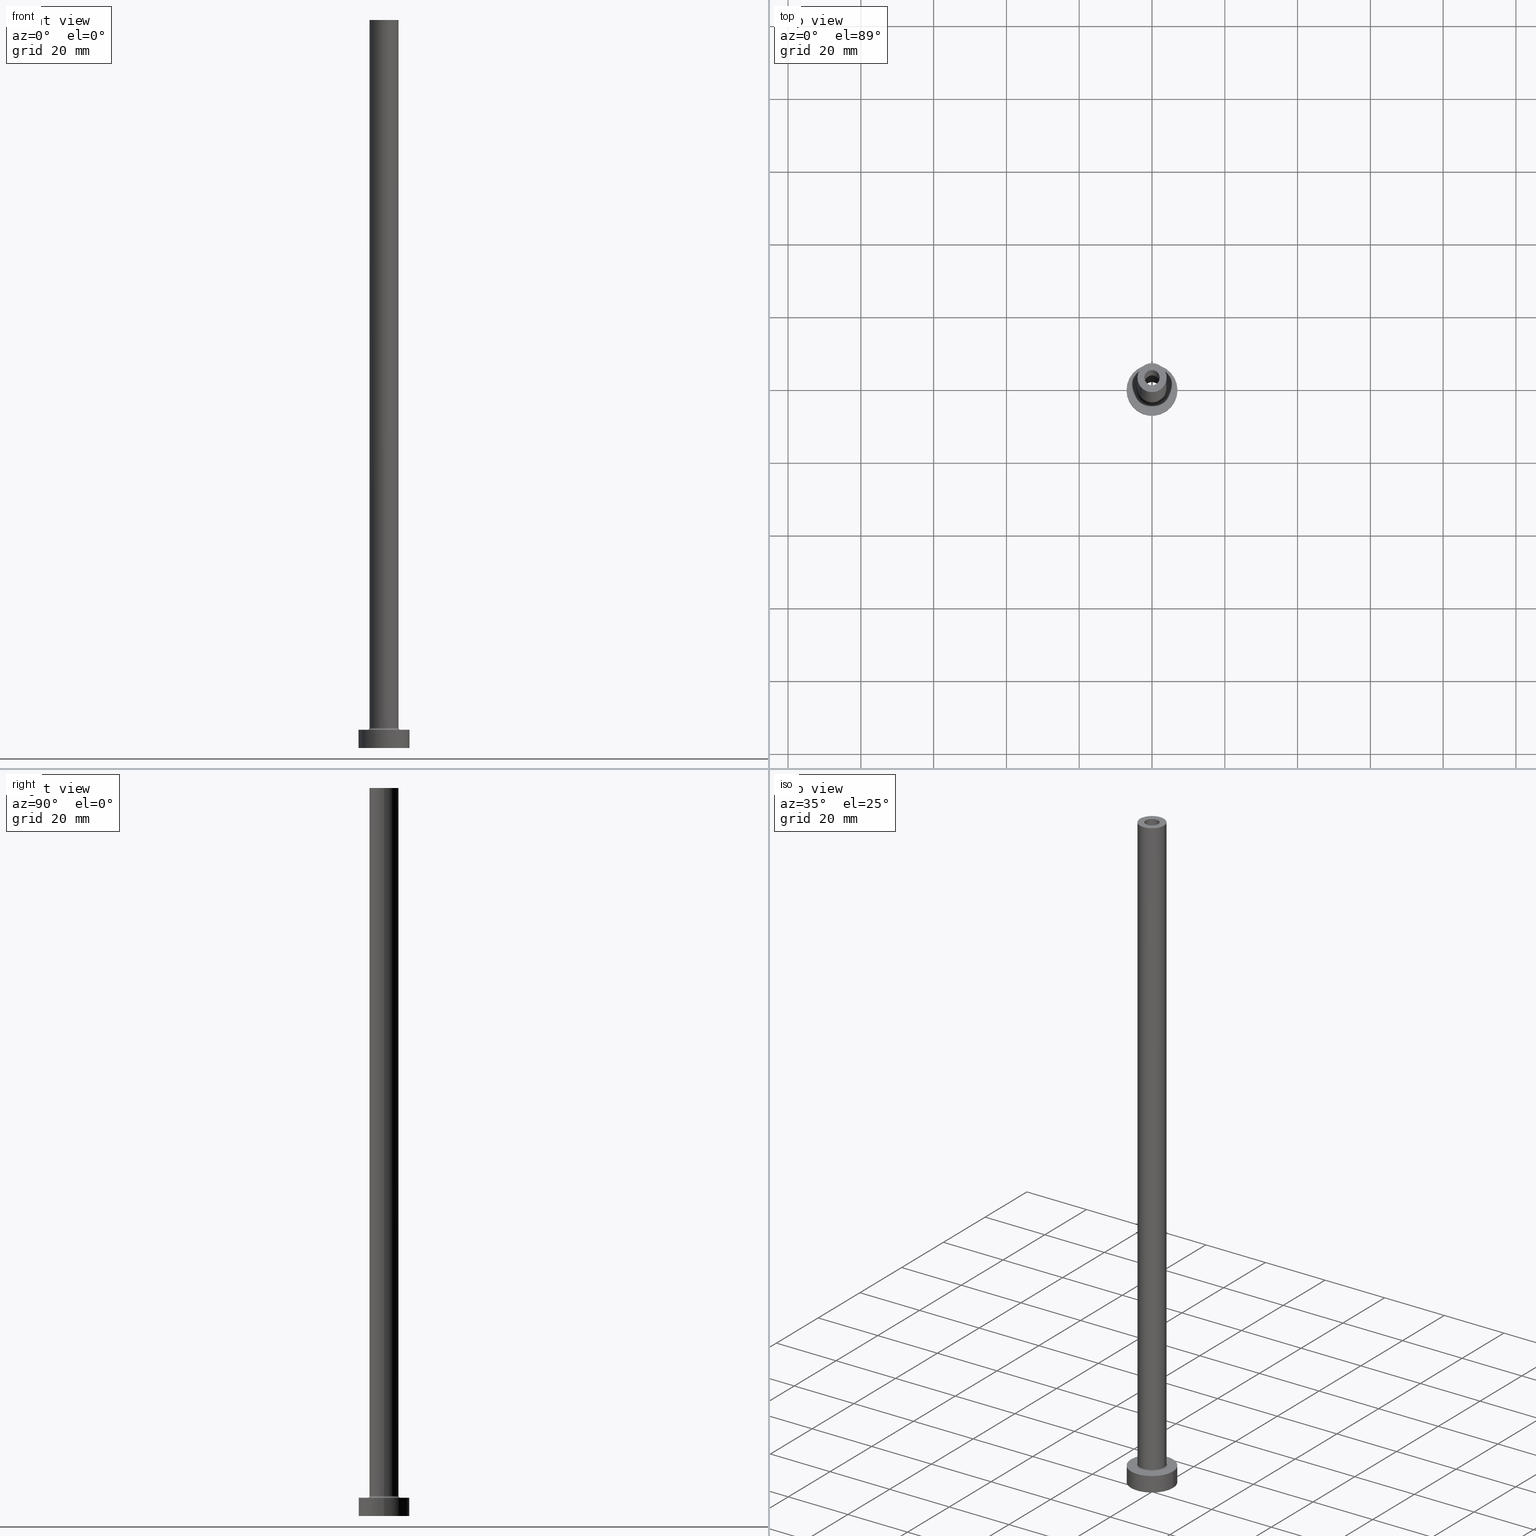
[diagram: canonical four-view strip — front | top / right | iso, engineering-drawing reading convention]
A machine part, canonical four-view strip (front | top / right | iso — engineering-drawing reading convention). The complete STEP part file that produces these views, byte-faithful:
ISO-10303-21;
HEADER;
FILE_DESCRIPTION (( 'STEP AP203' ),
    '1' );
FILE_NAME ('a5d0.STEP',
    '2023-02-13T11:06:39',
    ( '' ),
    ( '' ),
    'SwSTEP 2.0',
    'SolidWorks 2019',
    '' );
FILE_SCHEMA (( 'CONFIG_CONTROL_DESIGN' ));
ENDSEC;

DATA;
#1 = AXIS2_PLACEMENT_3D ( 'NONE', #55, #445, #270 ) ;
#2 = EDGE_CURVE ( 'NONE', #222, #29, #104, .T. ) ;
#3 = ORIENTED_EDGE ( 'NONE', *, *, #2, .F. ) ;
#4 = VERTEX_POINT ( 'NONE', #275 ) ;
#5 = DIRECTION ( 'NONE',  ( 1.000000000000000000, 0.000000000000000000, 0.000000000000000000 ) ) ;
#6 = EDGE_CURVE ( 'NONE', #12, #303, #56, .T. ) ;
#7 = AXIS2_PLACEMENT_3D ( 'NONE', #121, #200, #333 ) ;
#8 = CARTESIAN_POINT ( 'NONE',  ( 0.000000000000000000, 0.000000000000000000, 161.3639610306789507 ) ) ;
#9 =( GEOMETRIC_REPRESENTATION_CONTEXT ( 3 ) GLOBAL_UNCERTAINTY_ASSIGNED_CONTEXT ( ( #372 ) ) GLOBAL_UNIT_ASSIGNED_CONTEXT ( ( #459, #357, #248 ) ) REPRESENTATION_CONTEXT ( 'NONE', 'WORKASPACE' ) );
#10 = DIRECTION ( 'NONE',  ( 0.000000000000000000, 0.000000000000000000, 1.000000000000000000 ) ) ;
#11 = CARTESIAN_POINT ( 'NONE',  ( 0.000000000000000000, 0.000000000000000000, 5.500000000000005329 ) ) ;
#12 = VERTEX_POINT ( 'NONE', #339 ) ;
#13 = CARTESIAN_POINT ( 'NONE',  ( 0.000000000000000000, 0.000000000000000000, 200.0000000000000000 ) ) ;
#14 = TOROIDAL_SURFACE ( 'NONE', #133, 4.500000000000000888, 0.5000000000000000000 ) ;
#15 = DIRECTION ( 'NONE',  ( 1.000000000000000000, 0.000000000000000000, 0.000000000000000000 ) ) ;
#16 = DESIGN_CONTEXT ( 'detailed design', #348, 'design' ) ;
#17 = CARTESIAN_POINT ( 'NONE',  ( 2.250000000000000000, 2.755455298081544285E-16, 155.0000000000000284 ) ) ;
#18 = APPROVAL_PERSON_ORGANIZATION ( #141, #359, #426 ) ;
#19 = DIRECTION ( 'NONE',  ( 0.000000000000000000, 0.000000000000000000, 1.000000000000000000 ) ) ;
#20 = DIRECTION ( 'NONE',  ( 1.000000000000000000, 0.000000000000000000, 0.000000000000000000 ) ) ;
#21 = CC_DESIGN_PERSON_AND_ORGANIZATION_ASSIGNMENT ( #69, #96, ( #457 ) ) ;
#22 = FACE_OUTER_BOUND ( 'NONE', #188, .T. ) ;
#23 = LINE ( 'NONE', #414, #447 ) ;
#24 = DIRECTION ( 'NONE',  ( 0.000000000000000000, 0.000000000000000000, 1.000000000000000000 ) ) ;
#25 = AXIS2_PLACEMENT_3D ( 'NONE', #155, #366, #225 ) ;
#26 = AXIS2_PLACEMENT_3D ( 'NONE', #109, #132, #138 ) ;
#27 = CARTESIAN_POINT ( 'NONE',  ( 0.000000000000000000, 0.000000000000000000, 5.000000000000000000 ) ) ;
#28 = DIRECTION ( 'NONE',  ( -0.000000000000000000, -0.000000000000000000, -1.000000000000000000 ) ) ;
#29 = VERTEX_POINT ( 'NONE', #451 ) ;
#30 = PERSON_AND_ORGANIZATION ( #148, #241 ) ;
#31 = VECTOR ( 'NONE', #28, 1000.000000000000000 ) ;
#32 = ORIENTED_EDGE ( 'NONE', *, *, #115, .T. ) ;
#33 = COORDINATED_UNIVERSAL_TIME_OFFSET ( 1, 0, .AHEAD. ) ;
#34 = APPROVAL_STATUS ( 'not_yet_approved' ) ;
#35 = ADVANCED_FACE ( 'NONE', ( #277, #22 ), #413, .T. ) ;
#36 = DIRECTION ( 'NONE',  ( 0.000000000000000000, -1.000000000000000000, 0.000000000000000000 ) ) ;
#37 = DIRECTION ( 'NONE',  ( 0.000000000000000000, 0.000000000000000000, 1.000000000000000000 ) ) ;
#38 = APPROVAL_STATUS ( 'not_yet_approved' ) ;
#39 = EDGE_LOOP ( 'NONE', ( #147, #190, #336, #123 ) ) ;
#40 = ADVANCED_FACE ( 'NONE', ( #309 ), #14, .F. ) ;
#41 = ORIENTED_EDGE ( 'NONE', *, *, #218, .F. ) ;
#42 = ORIENTED_EDGE ( 'NONE', *, *, #360, .T. ) ;
#43 = FACE_OUTER_BOUND ( 'NONE', #53, .T. ) ;
#44 = CC_DESIGN_PERSON_AND_ORGANIZATION_ASSIGNMENT ( #346, #212, ( #259 ) ) ;
#45 = CARTESIAN_POINT ( 'NONE',  ( 0.000000000000000000, 0.000000000000000000, 200.0000000000000000 ) ) ;
#46 = LINE ( 'NONE', #261, #203 ) ;
#47 = DIRECTION ( 'NONE',  ( 0.000000000000000000, 0.000000000000000000, -1.000000000000000000 ) ) ;
#48 = CARTESIAN_POINT ( 'NONE',  ( 0.000000000000000000, 0.000000000000000000, 0.000000000000000000 ) ) ;
#49 = CIRCLE ( 'NONE', #312, 4.000000000000000000 ) ;
#50 = ORIENTED_EDGE ( 'NONE', *, *, #74, .T. ) ;
#51 = CYLINDRICAL_SURFACE ( 'NONE', #455, 4.000000000000000000 ) ;
#52 = CYLINDRICAL_SURFACE ( 'NONE', #91, 7.000000000000000000 ) ;
#53 = EDGE_LOOP ( 'NONE', ( #446, #68, #398, #353 ) ) ;
#54 = CIRCLE ( 'NONE', #421, 2.100000000000000089 ) ;
#55 = CARTESIAN_POINT ( 'NONE',  ( 0.000000000000000000, 0.000000000000000000, 5.000000000000000000 ) ) ;
#56 = LINE ( 'NONE', #379, #31 ) ;
#57 = CARTESIAN_POINT ( 'NONE',  ( 0.000000000000000000, 0.000000000000000000, 200.0000000000000000 ) ) ;
#58 = APPROVAL ( #34, 'NEUR�EN�' ) ;
#59 = ORIENTED_EDGE ( 'NONE', *, *, #433, .T. ) ;
#60 = EDGE_LOOP ( 'NONE', ( #173, #264 ) ) ;
#61 = MECHANICAL_CONTEXT ( 'NONE', #280, 'mechanical' ) ;
#62 = CARTESIAN_POINT ( 'NONE',  ( -4.000000000000000000, 0.000000000000000000, 200.0000000000000000 ) ) ;
#63 = ADVANCED_FACE ( 'NONE', ( #131, #315 ), #246, .F. ) ;
#64 = ORIENTED_EDGE ( 'NONE', *, *, #438, .F. ) ;
#65 = APPROVAL_STATUS ( 'not_yet_approved' ) ;
#66 = FACE_OUTER_BOUND ( 'NONE', #291, .T. ) ;
#67 = CC_DESIGN_DATE_AND_TIME_ASSIGNMENT ( #387, #135, ( #219 ) ) ;
#68 = ORIENTED_EDGE ( 'NONE', *, *, #2, .T. ) ;
#69 = PERSON_AND_ORGANIZATION ( #148, #241 ) ;
#70 = CIRCLE ( 'NONE', #162, 2.250000000000000000 ) ;
#71 = APPROVAL_PERSON_ORGANIZATION ( #239, #318, #461 ) ;
#72 = DIRECTION ( 'NONE',  ( -0.000000000000000000, -0.000000000000000000, -1.000000000000000000 ) ) ;
#73 = CALENDAR_DATE ( 2023, 13, 2 ) ;
#74 = EDGE_CURVE ( 'NONE', #324, #358, #453, .T. ) ;
#75 = ORIENTED_EDGE ( 'NONE', *, *, #184, .T. ) ;
#76 = DIRECTION ( 'NONE',  ( 0.000000000000000000, 0.000000000000000000, 1.000000000000000000 ) ) ;
#77 = AXIS2_PLACEMENT_3D ( 'NONE', #136, #287, #215 ) ;
#78 = CC_DESIGN_SECURITY_CLASSIFICATION ( #457, ( #124 ) ) ;
#79 = CARTESIAN_POINT ( 'NONE',  ( 0.000000000000000000, 0.000000000000000000, 0.000000000000000000 ) ) ;
#80 = VERTEX_POINT ( 'NONE', #217 ) ;
#81 = AXIS2_PLACEMENT_3D ( 'NONE', #204, #376, #134 ) ;
#82 = ORIENTED_EDGE ( 'NONE', *, *, #243, .T. ) ;
#83 = DIRECTION ( 'NONE',  ( 0.000000000000000000, 0.000000000000000000, 1.000000000000000000 ) ) ;
#84 = APPROVAL_PERSON_ORGANIZATION ( #351, #58, #182 ) ;
#85 = EDGE_CURVE ( 'NONE', #341, #305, #187, .T. ) ;
#86 = VERTEX_POINT ( 'NONE', #185 ) ;
#87 = FACE_OUTER_BOUND ( 'NONE', #130, .T. ) ;
#88 = AXIS2_PLACEMENT_3D ( 'NONE', #285, #111, #145 ) ;
#89 = ORIENTED_EDGE ( 'NONE', *, *, #250, .F. ) ;
#90 = EDGE_CURVE ( 'NONE', #350, #86, #142, .T. ) ;
#91 = AXIS2_PLACEMENT_3D ( 'NONE', #229, #207, #340 ) ;
#92 = DIRECTION ( 'NONE',  ( 1.000000000000000000, 0.000000000000000000, 0.000000000000000000 ) ) ;
#93 = AXIS2_PLACEMENT_3D ( 'NONE', #45, #83, #365 ) ;
#94 = PRODUCT_DEFINITION_SHAPE ( 'NONE', 'NONE',  #219 ) ;
#95 = DIRECTION ( 'NONE',  ( 0.000000000000000000, 0.000000000000000000, -1.000000000000000000 ) ) ;
#96 = PERSON_AND_ORGANIZATION_ROLE ( 'classification_officer' ) ;
#97 = LINE ( 'NONE', #418, #271 ) ;
#98 = DIRECTION ( 'NONE',  ( 0.000000000000000000, 0.000000000000000000, 1.000000000000000000 ) ) ;
#99 = DATE_AND_TIME ( #179, #101 ) ;
#100 = AXIS2_PLACEMENT_3D ( 'NONE', #48, #10, #5 ) ;
#101 = LOCAL_TIME ( 12, 6, 39.00000000000000000, #186 ) ;
#102 = ORIENTED_EDGE ( 'NONE', *, *, #119, .T. ) ;
#103 = COORDINATED_UNIVERSAL_TIME_OFFSET ( 1, 0, .AHEAD. ) ;
#104 = CIRCLE ( 'NONE', #81, 0.5000000000000004441 ) ;
#105 = ORIENTED_EDGE ( 'NONE', *, *, #174, .F. ) ;
#106 = FACE_BOUND ( 'NONE', #128, .T. ) ;
#107 = CARTESIAN_POINT ( 'NONE',  ( 0.000000000000000000, 0.000000000000000000, 155.0000000000000284 ) ) ;
#108 = EDGE_CURVE ( 'NONE', #4, #220, #175, .T. ) ;
#109 = CARTESIAN_POINT ( 'NONE',  ( 0.000000000000000000, 0.000000000000000000, 0.000000000000000000 ) ) ;
#110 = AXIS2_PLACEMENT_3D ( 'NONE', #427, #253, #401 ) ;
#111 = DIRECTION ( 'NONE',  ( 0.000000000000000000, 0.000000000000000000, 1.000000000000000000 ) ) ;
#112 = CYLINDRICAL_SURFACE ( 'NONE', #183, 2.250000000000000000 ) ;
#113 = ORIENTED_EDGE ( 'NONE', *, *, #189, .T. ) ;
#114 = DIRECTION ( 'NONE',  ( 0.000000000000000000, 0.000000000000000000, 1.000000000000000000 ) ) ;
#115 = EDGE_CURVE ( 'NONE', #220, #222, #424, .T. ) ;
#116 = CC_DESIGN_DATE_AND_TIME_ASSIGNMENT ( #99, #354, ( #457 ) ) ;
#117 = DIRECTION ( 'NONE',  ( -1.000000000000000000, 0.000000000000000000, 0.000000000000000000 ) ) ;
#118 = ORIENTED_EDGE ( 'NONE', *, *, #224, .F. ) ;
#119 = EDGE_CURVE ( 'NONE', #222, #396, #49, .T. ) ;
#120 = DIRECTION ( 'NONE',  ( -1.000000000000000000, 0.000000000000000000, 0.000000000000000000 ) ) ;
#121 = CARTESIAN_POINT ( 'NONE',  ( 0.000000000000000000, 0.000000000000000000, 200.0000000000000000 ) ) ;
#122 = CIRCLE ( 'NONE', #110, 4.500000000000000888 ) ;
#123 = ORIENTED_EDGE ( 'NONE', *, *, #115, .F. ) ;
#124 = PRODUCT_DEFINITION_FORMATION_WITH_SPECIFIED_SOURCE ( 'LIBOVOLN�', '', #259, .NOT_KNOWN. ) ;
#125 = DIRECTION ( 'NONE',  ( 0.000000000000000000, 0.000000000000000000, -1.000000000000000000 ) ) ;
#126 = EDGE_CURVE ( 'NONE', #80, #86, #308, .T. ) ;
#127 = DIRECTION ( 'NONE',  ( 1.000000000000000000, 0.000000000000000000, 0.000000000000000000 ) ) ;
#128 = EDGE_LOOP ( 'NONE', ( #326, #82 ) ) ;
#129 = CARTESIAN_POINT ( 'NONE',  ( 7.000000000000000000, 8.572527594031473190E-16, 0.000000000000000000 ) ) ;
#130 = EDGE_LOOP ( 'NONE', ( #181, #50, #234, #439 ) ) ;
#131 = FACE_BOUND ( 'NONE', #257, .T. ) ;
#132 = DIRECTION ( 'NONE',  ( 0.000000000000000000, 0.000000000000000000, 1.000000000000000000 ) ) ;
#133 = AXIS2_PLACEMENT_3D ( 'NONE', #415, #98, #177 ) ;
#134 = DIRECTION ( 'NONE',  ( -1.000000000000000000, 1.224646799147351482E-16, 0.000000000000000000 ) ) ;
#135 = DATE_TIME_ROLE ( 'creation_date' ) ;
#136 = CARTESIAN_POINT ( 'NONE',  ( 0.000000000000000000, 0.000000000000000000, 200.0000000000000000 ) ) ;
#137 = DIRECTION ( 'NONE',  ( 0.000000000000000000, 0.000000000000000000, -1.000000000000000000 ) ) ;
#138 = DIRECTION ( 'NONE',  ( 1.000000000000000000, 0.000000000000000000, 0.000000000000000000 ) ) ;
#139 = AXIS2_PLACEMENT_3D ( 'NONE', #373, #267, #120 ) ;
#140 = ORIENTED_EDGE ( 'NONE', *, *, #90, .T. ) ;
#141 = PERSON_AND_ORGANIZATION ( #148, #241 ) ;
#142 = CIRCLE ( 'NONE', #266, 2.100000000000000089 ) ;
#143 = DIRECTION ( 'NONE',  ( 0.000000000000000000, 0.000000000000000000, 1.000000000000000000 ) ) ;
#144 = CARTESIAN_POINT ( 'NONE',  ( 0.000000000000000000, 0.000000000000000000, 155.0000000000000284 ) ) ;
#145 = DIRECTION ( 'NONE',  ( 1.000000000000000000, 0.000000000000000000, 0.000000000000000000 ) ) ;
#146 = CC_DESIGN_PERSON_AND_ORGANIZATION_ASSIGNMENT ( #30, #342, ( #124 ) ) ;
#147 = ORIENTED_EDGE ( 'NONE', *, *, #108, .F. ) ;
#148 = PERSON ( 'NEUR�EN�', 'NEUR�EN�', 'NEUR�EN�', ('NEUR�EN�'), ('NEUR�EN�'), ('NEUR�EN�') ) ;
#149 = CIRCLE ( 'NONE', #254, 7.000000000000000000 ) ;
#150 = ORIENTED_EDGE ( 'NONE', *, *, #347, .F. ) ;
#151 = DIRECTION ( 'NONE',  ( 1.000000000000000000, 0.000000000000000000, 0.000000000000000000 ) ) ;
#152 = AXIS2_PLACEMENT_3D ( 'NONE', #263, #19, #127 ) ;
#153 = FACE_BOUND ( 'NONE', #260, .T. ) ;
#154 = EDGE_CURVE ( 'NONE', #303, #358, #292, .T. ) ;
#155 = CARTESIAN_POINT ( 'NONE',  ( 0.000000000000000000, 0.000000000000000000, 161.3639610306789507 ) ) ;
#156 = CIRCLE ( 'NONE', #441, 7.000000000000000000 ) ;
#157 = FACE_OUTER_BOUND ( 'NONE', #288, .T. ) ;
#158 = DIRECTION ( 'NONE',  ( 0.000000000000000000, 0.000000000000000000, 1.000000000000000000 ) ) ;
#159 = CC_DESIGN_PERSON_AND_ORGANIZATION_ASSIGNMENT ( #425, #416, ( #124 ) ) ;
#160 = ORIENTED_EDGE ( 'NONE', *, *, #224, .T. ) ;
#161 = CARTESIAN_POINT ( 'NONE',  ( 4.500000000000000888, 0.000000000000000000, 5.000000000000002665 ) ) ;
#162 = AXIS2_PLACEMENT_3D ( 'NONE', #144, #284, #176 ) ;
#163 = EDGE_LOOP ( 'NONE', ( #3, #150, #361, #458 ) ) ;
#164 = AXIS2_PLACEMENT_3D ( 'NONE', #440, #258, #404 ) ;
#165 = VERTEX_POINT ( 'NONE', #377 ) ;
#166 = CARTESIAN_POINT ( 'NONE',  ( 2.100000000000000089, 2.571758278209441464E-16, 155.0000000000000284 ) ) ;
#167 = ADVANCED_FACE ( 'NONE', ( #231 ), #52, .T. ) ;
#168 = DIRECTION ( 'NONE',  ( 1.000000000000000000, 0.000000000000000000, -0.000000000000000000 ) ) ;
#169 = MANIFOLD_SOLID_BREP ( 'Odebrat vysunut�m4', #191 ) ;
#170 = AXIS2_PLACEMENT_3D ( 'NONE', #79, #221, #15 ) ;
#171 = DATE_AND_TIME ( #393, #383 ) ;
#172 = CC_DESIGN_APPROVAL ( #359, ( #219 ) ) ;
#173 = ORIENTED_EDGE ( 'NONE', *, *, #433, .F. ) ;
#174 = EDGE_CURVE ( 'NONE', #419, #233, #23, .T. ) ;
#175 = CIRCLE ( 'NONE', #88, 4.000000000000000000 ) ;
#176 = DIRECTION ( 'NONE',  ( 1.000000000000000000, 0.000000000000000000, 0.000000000000000000 ) ) ;
#177 = DIRECTION ( 'NONE',  ( 1.000000000000000000, 0.000000000000000000, 0.000000000000000000 ) ) ;
#178 = ORIENTED_EDGE ( 'NONE', *, *, #6, .T. ) ;
#179 = CALENDAR_DATE ( 2023, 13, 2 ) ;
#180 = DIRECTION ( 'NONE',  ( 1.000000000000000000, 0.000000000000000000, -0.000000000000000000 ) ) ;
#181 = ORIENTED_EDGE ( 'NONE', *, *, #184, .F. ) ;
#182 = APPROVAL_ROLE ( '' ) ;
#183 = AXIS2_PLACEMENT_3D ( 'NONE', #8, #226, #297 ) ;
#184 = EDGE_CURVE ( 'NONE', #324, #12, #156, .T. ) ;
#185 = CARTESIAN_POINT ( 'NONE',  ( -2.100000000000000089, 0.000000000000000000, 155.0000000000000284 ) ) ;
#186 = COORDINATED_UNIVERSAL_TIME_OFFSET ( 1, 0, .AHEAD. ) ;
#187 = LINE ( 'NONE', #321, #338 ) ;
#188 = EDGE_LOOP ( 'NONE', ( #434, #411 ) ) ;
#189 = EDGE_CURVE ( 'NONE', #165, #80, #210, .T. ) ;
#190 = ORIENTED_EDGE ( 'NONE', *, *, #316, .T. ) ;
#191 = CLOSED_SHELL ( 'NONE', ( #304, #274, #410, #325, #320, #167, #213, #405, #232, #35, #40, #423, #63, #448 ) ) ;
#192 = CARTESIAN_POINT ( 'NONE',  ( 0.000000000000000000, 0.000000000000000000, 155.0000000000000284 ) ) ;
#193 = CYLINDRICAL_SURFACE ( 'NONE', #139, 7.000000000000000000 ) ;
#194 = EDGE_LOOP ( 'NONE', ( #42, #75 ) ) ;
#195 = PLANE ( 'NONE',  #368 ) ;
#196 = EDGE_LOOP ( 'NONE', ( #238, #272, #403, #160 ) ) ;
#197 = FACE_OUTER_BOUND ( 'NONE', #460, .T. ) ;
#198 = CYLINDRICAL_SURFACE ( 'NONE', #279, 2.100000000000000089 ) ;
#199 = VERTEX_POINT ( 'NONE', #161 ) ;
#200 = DIRECTION ( 'NONE',  ( 0.000000000000000000, 0.000000000000000000, 1.000000000000000000 ) ) ;
#201 = ORIENTED_EDGE ( 'NONE', *, *, #360, .F. ) ;
#202 = CARTESIAN_POINT ( 'NONE',  ( 0.000000000000000000, 0.000000000000000000, 200.0000000000000000 ) ) ;
#203 = VECTOR ( 'NONE', #301, 1000.000000000000000 ) ;
#204 = CARTESIAN_POINT ( 'NONE',  ( -4.500000000000000888, 5.510910596163089556E-16, 5.500000000000005329 ) ) ;
#205 = TOROIDAL_SURFACE ( 'NONE', #228, 4.500000000000000888, 0.5000000000000000000 ) ;
#206 = DIRECTION ( 'NONE',  ( 1.000000000000000000, 0.000000000000000000, 0.000000000000000000 ) ) ;
#207 = DIRECTION ( 'NONE',  ( -0.000000000000000000, -0.000000000000000000, -1.000000000000000000 ) ) ;
#208 = EDGE_CURVE ( 'NONE', #165, #350, #97, .T. ) ;
#209 = ORIENTED_EDGE ( 'NONE', *, *, #154, .F. ) ;
#210 = CIRCLE ( 'NONE', #7, 2.100000000000000089 ) ;
#211 = PERSON_AND_ORGANIZATION ( #148, #241 ) ;
#212 = PERSON_AND_ORGANIZATION_ROLE ( 'design_owner' ) ;
#213 = ADVANCED_FACE ( 'NONE', ( #106, #382 ), #363, .T. ) ;
#214 = APPLICATION_PROTOCOL_DEFINITION ( 'international standard', 'config_control_design', 1994, #348 ) ;
#215 = DIRECTION ( 'NONE',  ( -1.000000000000000000, 0.000000000000000000, 0.000000000000000000 ) ) ;
#216 = APPROVAL_DATE_TIME ( #282, #58 ) ;
#217 = CARTESIAN_POINT ( 'NONE',  ( -2.100000000000000089, 0.000000000000000000, 200.0000000000000000 ) ) ;
#218 = EDGE_CURVE ( 'NONE', #341, #419, #70, .T. ) ;
#219 = PRODUCT_DEFINITION ( 'NEZN�M�', '', #124, #16 ) ;
#220 = VERTEX_POINT ( 'NONE', #62 ) ;
#221 = DIRECTION ( 'NONE',  ( -0.000000000000000000, -0.000000000000000000, -1.000000000000000000 ) ) ;
#222 = VERTEX_POINT ( 'NONE', #314 ) ;
#223 = CARTESIAN_POINT ( 'NONE',  ( -2.250000000000000000, 0.000000000000000000, 155.0000000000000284 ) ) ;
#224 = EDGE_CURVE ( 'NONE', #233, #305, #329, .T. ) ;
#225 = DIRECTION ( 'NONE',  ( -1.000000000000000000, 0.000000000000000000, 0.000000000000000000 ) ) ;
#226 = DIRECTION ( 'NONE',  ( 0.000000000000000000, 0.000000000000000000, -1.000000000000000000 ) ) ;
#227 = CIRCLE ( 'NONE', #289, 0.5000000000000004441 ) ;
#228 = AXIS2_PLACEMENT_3D ( 'NONE', #293, #435, #151 ) ;
#229 = CARTESIAN_POINT ( 'NONE',  ( 0.000000000000000000, 0.000000000000000000, 5.000000000000000000 ) ) ;
#230 = ORIENTED_EDGE ( 'NONE', *, *, #90, .F. ) ;
#231 = FACE_OUTER_BOUND ( 'NONE', #374, .T. ) ;
#232 = ADVANCED_FACE ( 'NONE', ( #66 ), #242, .T. ) ;
#233 = VERTEX_POINT ( 'NONE', #456 ) ;
#234 = ORIENTED_EDGE ( 'NONE', *, *, #283, .T. ) ;
#235 = DIRECTION ( 'NONE',  ( 0.000000000000000000, 0.000000000000000000, -1.000000000000000000 ) ) ;
#236 = EDGE_CURVE ( 'NONE', #396, #199, #227, .T. ) ;
#237 = CARTESIAN_POINT ( 'NONE',  ( -2.100000000000000089, 0.000000000000000000, 200.0000000000000000 ) ) ;
#238 = ORIENTED_EDGE ( 'NONE', *, *, #85, .F. ) ;
#239 = PERSON_AND_ORGANIZATION ( #148, #241 ) ;
#240 = DIRECTION ( 'NONE',  ( 0.000000000000000000, 0.000000000000000000, -1.000000000000000000 ) ) ;
#241 = ORGANIZATION ( 'NEUR�EN�', 'NEUR�EN�', '' ) ;
#242 = CYLINDRICAL_SURFACE ( 'NONE', #77, 4.000000000000000000 ) ;
#243 = EDGE_CURVE ( 'NONE', #29, #199, #122, .T. ) ;
#244 = APPROVAL_DATE_TIME ( #276, #359 ) ;
#245 = DIRECTION ( 'NONE',  ( 0.000000000000000000, 0.000000000000000000, -1.000000000000000000 ) ) ;
#246 = PLANE ( 'NONE',  #450 ) ;
#247 = COORDINATED_UNIVERSAL_TIME_OFFSET ( 1, 0, .AHEAD. ) ;
#248 =( NAMED_UNIT ( * ) SI_UNIT ( $, .STERADIAN. ) SOLID_ANGLE_UNIT ( ) );
#249 = CARTESIAN_POINT ( 'NONE',  ( 0.000000000000000000, 0.000000000000000000, 0.000000000000000000 ) ) ;
#250 = EDGE_CURVE ( 'NONE', #305, #233, #367, .T. ) ;
#251 = DIRECTION ( 'NONE',  ( 1.000000000000000000, 0.000000000000000000, 0.000000000000000000 ) ) ;
#252 = EDGE_LOOP ( 'NONE', ( #390, #41 ) ) ;
#253 = DIRECTION ( 'NONE',  ( -0.000000000000000000, -0.000000000000000000, -1.000000000000000000 ) ) ;
#254 = AXIS2_PLACEMENT_3D ( 'NONE', #307, #337, #92 ) ;
#255 = DIRECTION ( 'NONE',  ( -0.000000000000000000, -0.000000000000000000, -1.000000000000000000 ) ) ;
#256 = VECTOR ( 'NONE', #323, 1000.000000000000000 ) ;
#257 = EDGE_LOOP ( 'NONE', ( #300, #140 ) ) ;
#258 = DIRECTION ( 'NONE',  ( 0.000000000000000000, 0.000000000000000000, 1.000000000000000000 ) ) ;
#259 = PRODUCT ( 'a5d0', 'a5d0', '', ( #61 ) ) ;
#260 = EDGE_LOOP ( 'NONE', ( #118, #89 ) ) ;
#261 = CARTESIAN_POINT ( 'NONE',  ( 4.000000000000000000, 4.898587196589412829E-16, 200.0000000000000000 ) ) ;
#262 = CIRCLE ( 'NONE', #164, 2.100000000000000089 ) ;
#263 = CARTESIAN_POINT ( 'NONE',  ( 0.000000000000000000, 0.000000000000000000, 0.000000000000000000 ) ) ;
#264 = ORIENTED_EDGE ( 'NONE', *, *, #189, .F. ) ;
#265 = ORIENTED_EDGE ( 'NONE', *, *, #85, .T. ) ;
#266 = AXIS2_PLACEMENT_3D ( 'NONE', #107, #37, #392 ) ;
#267 = DIRECTION ( 'NONE',  ( -0.000000000000000000, -0.000000000000000000, -1.000000000000000000 ) ) ;
#268 = APPLICATION_PROTOCOL_DEFINITION ( 'international standard', 'config_control_design', 1994, #280 ) ;
#269 = PRODUCT_RELATED_PRODUCT_CATEGORY ( 'detail', '', ( #259 ) ) ;
#270 = DIRECTION ( 'NONE',  ( 1.000000000000000000, 0.000000000000000000, 0.000000000000000000 ) ) ;
#271 = VECTOR ( 'NONE', #240, 1000.000000000000000 ) ;
#272 = ORIENTED_EDGE ( 'NONE', *, *, #218, .T. ) ;
#273 = LOCAL_TIME ( 12, 6, 39.00000000000000000, #103 ) ;
#274 = ADVANCED_FACE ( 'NONE', ( #442 ), #328, .F. ) ;
#275 = CARTESIAN_POINT ( 'NONE',  ( 4.000000000000000000, 4.898587196589412829E-16, 200.0000000000000000 ) ) ;
#276 = DATE_AND_TIME ( #286, #290 ) ;
#277 = FACE_BOUND ( 'NONE', #60, .T. ) ;
#278 = ORIENTED_EDGE ( 'NONE', *, *, #389, .F. ) ;
#279 = AXIS2_PLACEMENT_3D ( 'NONE', #298, #125, #117 ) ;
#280 = APPLICATION_CONTEXT ( 'configuration controlled 3d designs of mechanical parts and assemblies' ) ;
#281 = LOCAL_TIME ( 12, 6, 39.00000000000000000, #313 ) ;
#282 = DATE_AND_TIME ( #73, #281 ) ;
#283 = EDGE_CURVE ( 'NONE', #358, #303, #428, .T. ) ;
#284 = DIRECTION ( 'NONE',  ( 0.000000000000000000, 0.000000000000000000, 1.000000000000000000 ) ) ;
#285 = CARTESIAN_POINT ( 'NONE',  ( 0.000000000000000000, 0.000000000000000000, 200.0000000000000000 ) ) ;
#286 = CALENDAR_DATE ( 2023, 13, 2 ) ;
#287 = DIRECTION ( 'NONE',  ( -0.000000000000000000, -0.000000000000000000, -1.000000000000000000 ) ) ;
#288 = EDGE_LOOP ( 'NONE', ( #59, #431, #278, #378 ) ) ;
#289 = AXIS2_PLACEMENT_3D ( 'NONE', #352, #36, #245 ) ;
#290 = LOCAL_TIME ( 12, 6, 39.00000000000000000, #33 ) ;
#291 = EDGE_LOOP ( 'NONE', ( #364, #64, #32, #102 ) ) ;
#292 = CIRCLE ( 'NONE', #152, 7.000000000000000000 ) ;
#293 = CARTESIAN_POINT ( 'NONE',  ( 0.000000000000000000, 0.000000000000000000, 5.500000000000005329 ) ) ;
#294 = EDGE_LOOP ( 'NONE', ( #209, #420 ) ) ;
#295 = CARTESIAN_POINT ( 'NONE',  ( 7.000000000000000000, 8.572527594031473190E-16, 5.000000000000000000 ) ) ;
#296 = ORIENTED_EDGE ( 'NONE', *, *, #417, .T. ) ;
#297 = DIRECTION ( 'NONE',  ( -1.000000000000000000, 0.000000000000000000, 0.000000000000000000 ) ) ;
#298 = CARTESIAN_POINT ( 'NONE',  ( 0.000000000000000000, 0.000000000000000000, 200.0000000000000000 ) ) ;
#299 = AXIS2_PLACEMENT_3D ( 'NONE', #57, #24, #168 ) ;
#300 = ORIENTED_EDGE ( 'NONE', *, *, #389, .T. ) ;
#301 = DIRECTION ( 'NONE',  ( -0.000000000000000000, -0.000000000000000000, -1.000000000000000000 ) ) ;
#302 = DIRECTION ( 'NONE',  ( 1.000000000000000000, 0.000000000000000000, 0.000000000000000000 ) ) ;
#303 = VERTEX_POINT ( 'NONE', #444 ) ;
#304 = ADVANCED_FACE ( 'NONE', ( #157 ), #198, .F. ) ;
#305 = VERTEX_POINT ( 'NONE', #408 ) ;
#306 = CARTESIAN_POINT ( 'NONE',  ( 0.000000000000000000, 0.000000000000000000, 5.500000000000005329 ) ) ;
#307 = CARTESIAN_POINT ( 'NONE',  ( 0.000000000000000000, 0.000000000000000000, 5.000000000000000000 ) ) ;
#308 = LINE ( 'NONE', #237, #432 ) ;
#309 = FACE_OUTER_BOUND ( 'NONE', #163, .T. ) ;
#310 = AXIS2_PLACEMENT_3D ( 'NONE', #192, #158, #402 ) ;
#311 = CARTESIAN_POINT ( 'NONE',  ( 0.000000000000000000, 0.000000000000000000, 0.000000000000000000 ) ) ;
#312 = AXIS2_PLACEMENT_3D ( 'NONE', #11, #370, #251 ) ;
#313 = COORDINATED_UNIVERSAL_TIME_OFFSET ( 1, 0, .AHEAD. ) ;
#314 = CARTESIAN_POINT ( 'NONE',  ( -4.000000000000000000, 0.000000000000000000, 5.500000000000005329 ) ) ;
#315 = FACE_OUTER_BOUND ( 'NONE', #252, .T. ) ;
#316 = EDGE_CURVE ( 'NONE', #4, #396, #46, .T. ) ;
#317 = DIRECTION ( 'NONE',  ( 1.000000000000000000, 0.000000000000000000, 0.000000000000000000 ) ) ;
#318 = APPROVAL ( #38, 'NEUR�EN�' ) ;
#319 = PERSON_AND_ORGANIZATION_ROLE ( 'creator' ) ;
#320 = ADVANCED_FACE ( 'NONE', ( #87 ), #193, .T. ) ;
#321 = CARTESIAN_POINT ( 'NONE',  ( 2.250000000000000000, 2.755455298081544285E-16, 161.3639610306789507 ) ) ;
#322 = AXIS2_PLACEMENT_3D ( 'NONE', #355, #114, #384 ) ;
#323 = DIRECTION ( 'NONE',  ( -0.000000000000000000, -0.000000000000000000, -1.000000000000000000 ) ) ;
#324 = VERTEX_POINT ( 'NONE', #295 ) ;
#325 = ADVANCED_FACE ( 'NONE', ( #437 ), #51, .T. ) ;
#326 = ORIENTED_EDGE ( 'NONE', *, *, #369, .T. ) ;
#327 = FACE_OUTER_BOUND ( 'NONE', #196, .T. ) ;
#328 = CYLINDRICAL_SURFACE ( 'NONE', #25, 2.250000000000000000 ) ;
#329 = CIRCLE ( 'NONE', #381, 2.250000000000000000 ) ;
#330 = CC_DESIGN_APPROVAL ( #58, ( #124 ) ) ;
#331 = ORIENTED_EDGE ( 'NONE', *, *, #154, .T. ) ;
#332 = CYLINDRICAL_SURFACE ( 'NONE', #345, 2.100000000000000089 ) ;
#333 = DIRECTION ( 'NONE',  ( 1.000000000000000000, 0.000000000000000000, 0.000000000000000000 ) ) ;
#334 = ORIENTED_EDGE ( 'NONE', *, *, #250, .T. ) ;
#335 = DIRECTION ( 'NONE',  ( -1.000000000000000000, 0.000000000000000000, 0.000000000000000000 ) ) ;
#336 = ORIENTED_EDGE ( 'NONE', *, *, #347, .T. ) ;
#337 = DIRECTION ( 'NONE',  ( 0.000000000000000000, 0.000000000000000000, 1.000000000000000000 ) ) ;
#338 = VECTOR ( 'NONE', #137, 1000.000000000000000 ) ;
#339 = CARTESIAN_POINT ( 'NONE',  ( -7.000000000000000000, 0.000000000000000000, 5.000000000000000000 ) ) ;
#340 = DIRECTION ( 'NONE',  ( -1.000000000000000000, 0.000000000000000000, 0.000000000000000000 ) ) ;
#341 = VERTEX_POINT ( 'NONE', #17 ) ;
#342 = PERSON_AND_ORGANIZATION_ROLE ( 'design_supplier' ) ;
#343 = AXIS2_PLACEMENT_3D ( 'NONE', #306, #409, #206 ) ;
#344 = EDGE_LOOP ( 'NONE', ( #296, #265, #334, #105 ) ) ;
#345 = AXIS2_PLACEMENT_3D ( 'NONE', #13, #47, #349 ) ;
#346 = PERSON_AND_ORGANIZATION ( #148, #241 ) ;
#347 = EDGE_CURVE ( 'NONE', #396, #222, #399, .T. ) ;
#348 = APPLICATION_CONTEXT ( 'configuration controlled 3d designs of mechanical parts and assemblies' ) ;
#349 = DIRECTION ( 'NONE',  ( -1.000000000000000000, 0.000000000000000000, 0.000000000000000000 ) ) ;
#350 = VERTEX_POINT ( 'NONE', #166 ) ;
#351 = PERSON_AND_ORGANIZATION ( #148, #241 ) ;
#352 = CARTESIAN_POINT ( 'NONE',  ( 4.500000000000000888, 0.000000000000000000, 5.500000000000005329 ) ) ;
#353 = ORIENTED_EDGE ( 'NONE', *, *, #236, .F. ) ;
#354 = DATE_TIME_ROLE ( 'classification_date' ) ;
#355 = CARTESIAN_POINT ( 'NONE',  ( 0.000000000000000000, 0.000000000000000000, 5.000000000000000000 ) ) ;
#356 = ADVANCED_BREP_SHAPE_REPRESENTATION ( 'a5d0', ( #169, #26 ), #9 ) ;
#357 =( NAMED_UNIT ( * ) PLANE_ANGLE_UNIT ( ) SI_UNIT ( $, .RADIAN. ) );
#358 = VERTEX_POINT ( 'NONE', #129 ) ;
#359 = APPROVAL ( #65, 'NEUR�EN�' ) ;
#360 = EDGE_CURVE ( 'NONE', #12, #324, #149, .T. ) ;
#361 = ORIENTED_EDGE ( 'NONE', *, *, #236, .T. ) ;
#362 = FACE_OUTER_BOUND ( 'NONE', #294, .T. ) ;
#363 = PLANE ( 'NONE',  #322 ) ;
#364 = ORIENTED_EDGE ( 'NONE', *, *, #316, .F. ) ;
#365 = DIRECTION ( 'NONE',  ( 1.000000000000000000, 0.000000000000000000, 0.000000000000000000 ) ) ;
#366 = DIRECTION ( 'NONE',  ( 0.000000000000000000, 0.000000000000000000, -1.000000000000000000 ) ) ;
#367 = CIRCLE ( 'NONE', #170, 2.250000000000000000 ) ;
#368 = AXIS2_PLACEMENT_3D ( 'NONE', #249, #76, #430 ) ;
#369 = EDGE_CURVE ( 'NONE', #199, #29, #407, .T. ) ;
#370 = DIRECTION ( 'NONE',  ( 0.000000000000000000, 0.000000000000000000, 1.000000000000000000 ) ) ;
#371 = DIRECTION ( 'NONE',  ( 0.000000000000000000, 0.000000000000000000, 1.000000000000000000 ) ) ;
#372 = UNCERTAINTY_MEASURE_WITH_UNIT (LENGTH_MEASURE( 1.000000000000000082E-05 ), #459, 'distance_accuracy_value', 'NONE');
#373 = CARTESIAN_POINT ( 'NONE',  ( 0.000000000000000000, 0.000000000000000000, 5.000000000000000000 ) ) ;
#374 = EDGE_LOOP ( 'NONE', ( #443, #201, #178, #331 ) ) ;
#375 = DIRECTION ( 'NONE',  ( 0.000000000000000000, 0.000000000000000000, 1.000000000000000000 ) ) ;
#376 = DIRECTION ( 'NONE',  ( 1.224646799147353207E-16, 1.000000000000000000, -0.000000000000000000 ) ) ;
#377 = CARTESIAN_POINT ( 'NONE',  ( 2.100000000000000089, 2.571758278209441464E-16, 200.0000000000000000 ) ) ;
#378 = ORIENTED_EDGE ( 'NONE', *, *, #126, .F. ) ;
#379 = CARTESIAN_POINT ( 'NONE',  ( -7.000000000000000000, 0.000000000000000000, 5.000000000000000000 ) ) ;
#380 = APPROVAL_DATE_TIME ( #171, #318 ) ;
#381 = AXIS2_PLACEMENT_3D ( 'NONE', #311, #449, #317 ) ;
#382 = FACE_OUTER_BOUND ( 'NONE', #194, .T. ) ;
#383 = LOCAL_TIME ( 12, 6, 39.00000000000000000, #247 ) ;
#384 = DIRECTION ( 'NONE',  ( 1.000000000000000000, 0.000000000000000000, -0.000000000000000000 ) ) ;
#385 = CC_DESIGN_PERSON_AND_ORGANIZATION_ASSIGNMENT ( #211, #319, ( #219 ) ) ;
#386 = CARTESIAN_POINT ( 'NONE',  ( 0.000000000000000000, 0.000000000000000000, 155.0000000000000284 ) ) ;
#387 = DATE_AND_TIME ( #452, #273 ) ;
#388 = CARTESIAN_POINT ( 'NONE',  ( 7.000000000000000000, 8.572527594031473190E-16, 5.000000000000000000 ) ) ;
#389 = EDGE_CURVE ( 'NONE', #86, #350, #54, .T. ) ;
#390 = ORIENTED_EDGE ( 'NONE', *, *, #417, .F. ) ;
#391 = SECURITY_CLASSIFICATION_LEVEL ( 'unclassified' ) ;
#392 = DIRECTION ( 'NONE',  ( 1.000000000000000000, 0.000000000000000000, 0.000000000000000000 ) ) ;
#393 = CALENDAR_DATE ( 2023, 13, 2 ) ;
#394 = VECTOR ( 'NONE', #72, 1000.000000000000000 ) ;
#395 = CARTESIAN_POINT ( 'NONE',  ( -4.000000000000000000, 0.000000000000000000, 200.0000000000000000 ) ) ;
#396 = VERTEX_POINT ( 'NONE', #397 ) ;
#397 = CARTESIAN_POINT ( 'NONE',  ( 4.000000000000000000, 4.898587196589412829E-16, 5.500000000000005329 ) ) ;
#398 = ORIENTED_EDGE ( 'NONE', *, *, #369, .F. ) ;
#399 = CIRCLE ( 'NONE', #343, 4.000000000000000000 ) ;
#400 = CIRCLE ( 'NONE', #93, 4.000000000000000000 ) ;
#401 = DIRECTION ( 'NONE',  ( 1.000000000000000000, 0.000000000000000000, 0.000000000000000000 ) ) ;
#402 = DIRECTION ( 'NONE',  ( 1.000000000000000000, 0.000000000000000000, 0.000000000000000000 ) ) ;
#403 = ORIENTED_EDGE ( 'NONE', *, *, #174, .T. ) ;
#404 = DIRECTION ( 'NONE',  ( 1.000000000000000000, 0.000000000000000000, 0.000000000000000000 ) ) ;
#405 = ADVANCED_FACE ( 'NONE', ( #153, #362 ), #195, .F. ) ;
#406 = ORIENTED_EDGE ( 'NONE', *, *, #126, .T. ) ;
#407 = CIRCLE ( 'NONE', #1, 4.500000000000000888 ) ;
#408 = CARTESIAN_POINT ( 'NONE',  ( 2.250000000000000000, 2.755455298081544285E-16, 0.000000000000000000 ) ) ;
#409 = DIRECTION ( 'NONE',  ( 0.000000000000000000, 0.000000000000000000, 1.000000000000000000 ) ) ;
#410 = ADVANCED_FACE ( 'NONE', ( #43 ), #205, .F. ) ;
#411 = ORIENTED_EDGE ( 'NONE', *, *, #108, .T. ) ;
#412 = CARTESIAN_POINT ( 'NONE',  ( 0.000000000000000000, 0.000000000000000000, 155.0000000000000284 ) ) ;
#413 = PLANE ( 'NONE',  #299 ) ;
#414 = CARTESIAN_POINT ( 'NONE',  ( -2.250000000000000000, 0.000000000000000000, 161.3639610306789507 ) ) ;
#415 = CARTESIAN_POINT ( 'NONE',  ( 0.000000000000000000, 0.000000000000000000, 5.500000000000005329 ) ) ;
#416 = PERSON_AND_ORGANIZATION_ROLE ( 'creator' ) ;
#417 = EDGE_CURVE ( 'NONE', #419, #341, #429, .T. ) ;
#418 = CARTESIAN_POINT ( 'NONE',  ( 2.100000000000000089, 2.571758278209441464E-16, 200.0000000000000000 ) ) ;
#419 = VERTEX_POINT ( 'NONE', #223 ) ;
#420 = ORIENTED_EDGE ( 'NONE', *, *, #283, .F. ) ;
#421 = AXIS2_PLACEMENT_3D ( 'NONE', #412, #375, #20 ) ;
#422 = ORIENTED_EDGE ( 'NONE', *, *, #208, .F. ) ;
#423 = ADVANCED_FACE ( 'NONE', ( #327 ), #112, .F. ) ;
#424 = LINE ( 'NONE', #395, #256 ) ;
#425 = PERSON_AND_ORGANIZATION ( #148, #241 ) ;
#426 = APPROVAL_ROLE ( '' ) ;
#427 = CARTESIAN_POINT ( 'NONE',  ( 0.000000000000000000, 0.000000000000000000, 5.000000000000000000 ) ) ;
#428 = CIRCLE ( 'NONE', #100, 7.000000000000000000 ) ;
#429 = CIRCLE ( 'NONE', #310, 2.250000000000000000 ) ;
#430 = DIRECTION ( 'NONE',  ( 1.000000000000000000, 0.000000000000000000, -0.000000000000000000 ) ) ;
#431 = ORIENTED_EDGE ( 'NONE', *, *, #208, .T. ) ;
#432 = VECTOR ( 'NONE', #235, 1000.000000000000000 ) ;
#433 = EDGE_CURVE ( 'NONE', #80, #165, #262, .T. ) ;
#434 = ORIENTED_EDGE ( 'NONE', *, *, #438, .T. ) ;
#435 = DIRECTION ( 'NONE',  ( 0.000000000000000000, 0.000000000000000000, 1.000000000000000000 ) ) ;
#436 = CC_DESIGN_APPROVAL ( #318, ( #457 ) ) ;
#437 = FACE_OUTER_BOUND ( 'NONE', #39, .T. ) ;
#438 = EDGE_CURVE ( 'NONE', #220, #4, #400, .T. ) ;
#439 = ORIENTED_EDGE ( 'NONE', *, *, #6, .F. ) ;
#440 = CARTESIAN_POINT ( 'NONE',  ( 0.000000000000000000, 0.000000000000000000, 200.0000000000000000 ) ) ;
#441 = AXIS2_PLACEMENT_3D ( 'NONE', #27, #371, #302 ) ;
#442 = FACE_OUTER_BOUND ( 'NONE', #344, .T. ) ;
#443 = ORIENTED_EDGE ( 'NONE', *, *, #74, .F. ) ;
#444 = CARTESIAN_POINT ( 'NONE',  ( -7.000000000000000000, 0.000000000000000000, 0.000000000000000000 ) ) ;
#445 = DIRECTION ( 'NONE',  ( -0.000000000000000000, -0.000000000000000000, -1.000000000000000000 ) ) ;
#446 = ORIENTED_EDGE ( 'NONE', *, *, #119, .F. ) ;
#447 = VECTOR ( 'NONE', #95, 1000.000000000000000 ) ;
#448 = ADVANCED_FACE ( 'NONE', ( #197 ), #332, .F. ) ;
#449 = DIRECTION ( 'NONE',  ( -0.000000000000000000, -0.000000000000000000, -1.000000000000000000 ) ) ;
#450 = AXIS2_PLACEMENT_3D ( 'NONE', #386, #143, #180 ) ;
#451 = CARTESIAN_POINT ( 'NONE',  ( -4.500000000000000888, 5.510910596163088569E-16, 5.000000000000002665 ) ) ;
#452 = CALENDAR_DATE ( 2023, 13, 2 ) ;
#453 = LINE ( 'NONE', #388, #394 ) ;
#454 = SHAPE_DEFINITION_REPRESENTATION ( #94, #356 ) ;
#455 = AXIS2_PLACEMENT_3D ( 'NONE', #202, #255, #335 ) ;
#456 = CARTESIAN_POINT ( 'NONE',  ( -2.250000000000000000, 0.000000000000000000, 0.000000000000000000 ) ) ;
#457 = SECURITY_CLASSIFICATION ( '', '', #391 ) ;
#458 = ORIENTED_EDGE ( 'NONE', *, *, #243, .F. ) ;
#459 =( LENGTH_UNIT ( ) NAMED_UNIT ( * ) SI_UNIT ( .MILLI., .METRE. ) );
#460 = EDGE_LOOP ( 'NONE', ( #422, #113, #406, #230 ) ) ;
#461 = APPROVAL_ROLE ( '' ) ;
ENDSEC;
END-ISO-10303-21;
